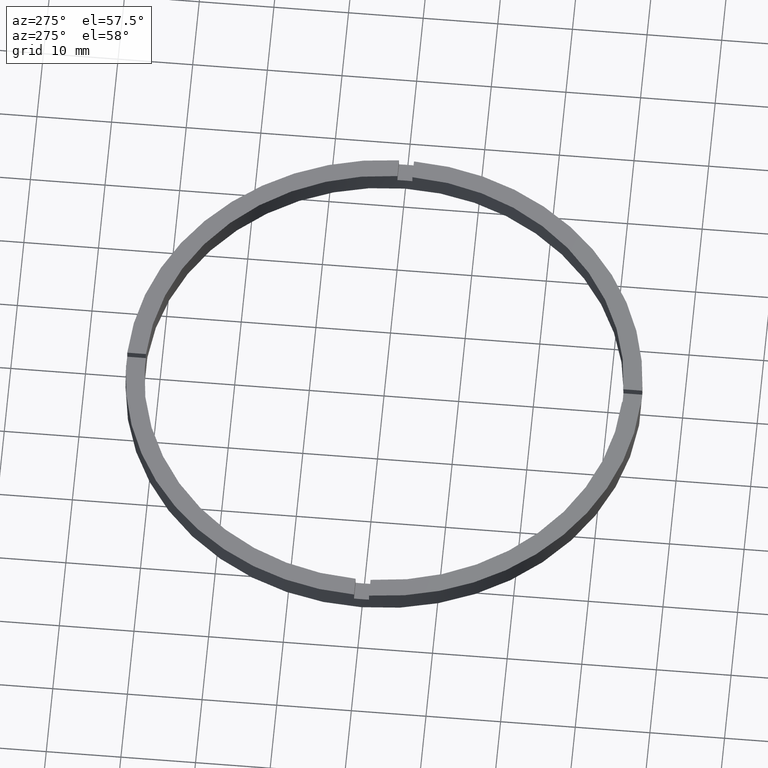
[diagram: clean part render]
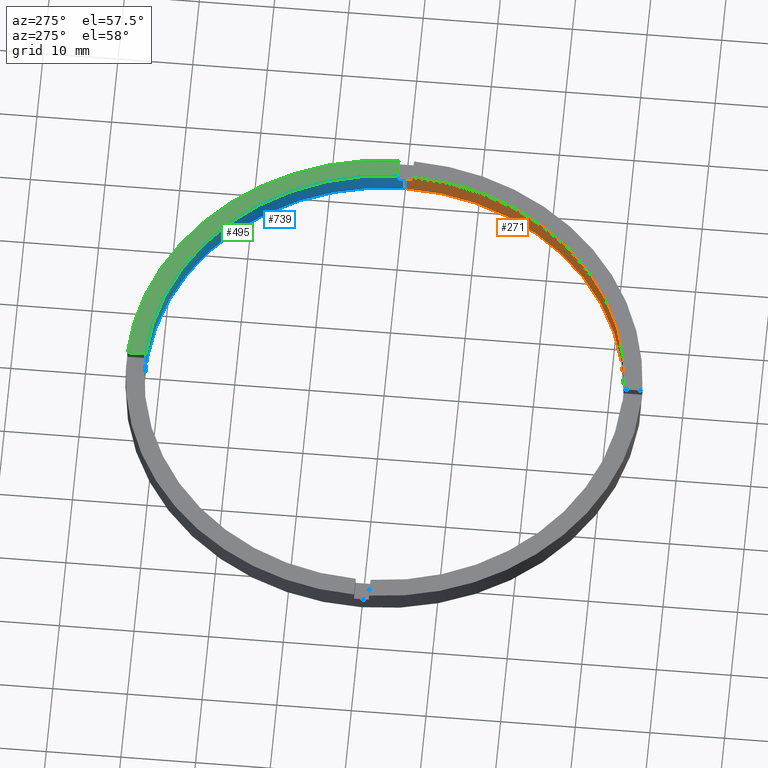
[diagram: same view with three faces highlighted in distinct colors, each labeled with its STEP entity id]
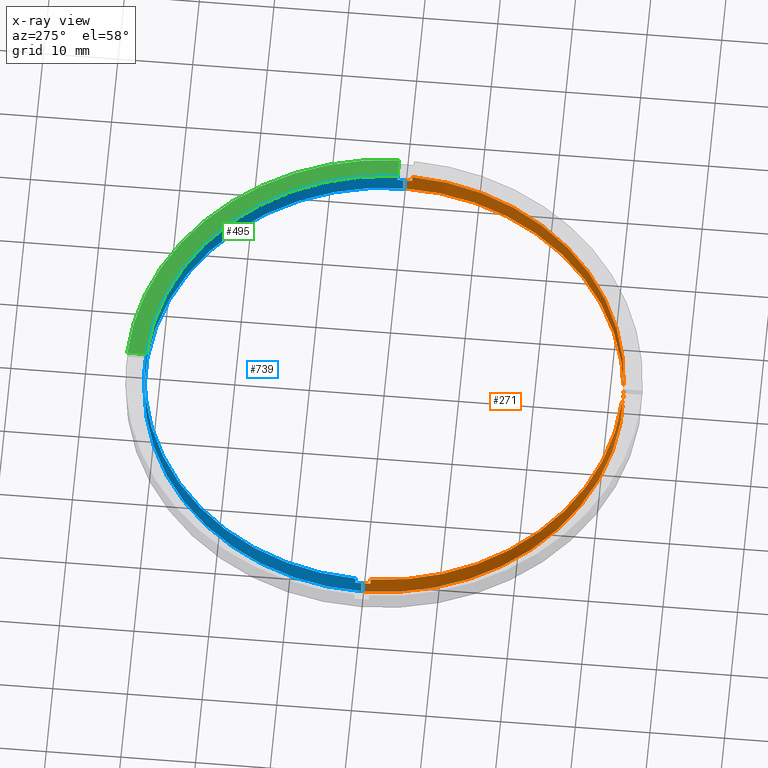
[diagram: x-ray of the same camera — body ghosted, the three highlighted faces saturated]
A machine part, auxiliary view with three faces highlighted in distinct colors.
The next image is the same camera in x-ray (body ghosted, the three faces saturated) — at least one of them is partly hidden behind the body in this view.
Their STEP definitions:

[orange] entity #271 — the highlighted cylindrical surface (partial cylindrical patch) has radius 32 mm, axis along (-0, -0, -1).
#14 = EDGE_CURVE ( 'NONE', #660, #645, #215, .T. ) ;
#25 = CARTESIAN_POINT ( 'NONE',  ( -31.98437118343894880, -1.000000000000026201, 3.000000000000000000 ) ) ;
#28 = LINE ( 'NONE', #308, #286 ) ;
#30 = LINE ( 'NONE', #536, #32 ) ;
#32 = VECTOR ( 'NONE', #158, 1000.000000000000000 ) ;
#33 = CARTESIAN_POINT ( 'NONE',  ( -1.000000000000161204, -31.98437118343894170, 3.000000000000000000 ) ) ;
#45 = CARTESIAN_POINT ( 'NONE',  ( 0.000000000000000000, 0.000000000000000000, 3.000000000000000000 ) ) ;
#47 = CARTESIAN_POINT ( 'NONE',  ( 0.000000000000000000, 0.000000000000000000, 3.000000000000000000 ) ) ;
#48 = EDGE_CURVE ( 'NONE', #84, #381, #486, .T. ) ;
#54 = CARTESIAN_POINT ( 'NONE',  ( 0.000000000000000000, 0.000000000000000000, 2.000000000000000000 ) ) ;
#61 = DIRECTION ( 'NONE',  ( 1.000000000000000000, 0.000000000000000000, 0.000000000000000000 ) ) ;
#65 = EDGE_CURVE ( 'NONE', #473, #645, #475, .T. ) ;
#66 = EDGE_LOOP ( 'NONE', ( #93, #123, #355, #220, #484, #574, #760, #635, #626, #238, #467, #142 ) ) ;
#72 = DIRECTION ( 'NONE',  ( -0.000000000000000000, -0.000000000000000000, -1.000000000000000000 ) ) ;
#74 = AXIS2_PLACEMENT_3D ( 'NONE', #555, #165, #239 ) ;
#84 = VERTEX_POINT ( 'NONE', #426 ) ;
#93 = ORIENTED_EDGE ( 'NONE', *, *, #715, .T. ) ;
#123 = ORIENTED_EDGE ( 'NONE', *, *, #553, .T. ) ;
#124 = VERTEX_POINT ( 'NONE', #573 ) ;
#133 = AXIS2_PLACEMENT_3D ( 'NONE', #631, #329, #373 ) ;
#134 = DIRECTION ( 'NONE',  ( 0.000000000000000000, 0.000000000000000000, 1.000000000000000000 ) ) ;
#142 = ORIENTED_EDGE ( 'NONE', *, *, #321, .F. ) ;
#146 = DIRECTION ( 'NONE',  ( -0.000000000000000000, -0.000000000000000000, -1.000000000000000000 ) ) ;
#147 = CIRCLE ( 'NONE', #74, 32.00000000000000000 ) ;
#158 = DIRECTION ( 'NONE',  ( 0.000000000000000000, 0.000000000000000000, 1.000000000000000000 ) ) ;
#165 = DIRECTION ( 'NONE',  ( 0.000000000000000000, 0.000000000000000000, 1.000000000000000000 ) ) ;
#180 = EDGE_CURVE ( 'NONE', #732, #752, #218, .T. ) ;
#181 = AXIS2_PLACEMENT_3D ( 'NONE', #646, #267, #637 ) ;
#215 = CIRCLE ( 'NONE', #181, 32.00000000000000000 ) ;
#217 = CARTESIAN_POINT ( 'NONE',  ( -31.98437118343894880, -1.000000000000026201, 2.000000000000000000 ) ) ;
#218 = CIRCLE ( 'NONE', #351, 32.00000000000000000 ) ;
#220 = ORIENTED_EDGE ( 'NONE', *, *, #569, .F. ) ;
#223 = DIRECTION ( 'NONE',  ( 0.000000000000000000, 0.000000000000000000, 1.000000000000000000 ) ) ;
#225 = VERTEX_POINT ( 'NONE', #217 ) ;
#229 = CARTESIAN_POINT ( 'NONE',  ( 0.9999999999998389066, -31.98437118343895591, 3.000000000000000000 ) ) ;
#238 = ORIENTED_EDGE ( 'NONE', *, *, #65, .F. ) ;
#239 = DIRECTION ( 'NONE',  ( 1.000000000000000000, 0.000000000000000000, 0.000000000000000000 ) ) ;
#240 = CYLINDRICAL_SURFACE ( 'NONE', #744, 32.00000000000000000 ) ;
#246 = CARTESIAN_POINT ( 'NONE',  ( 31.98437118343894170, -1.000000000000158096, 3.000000000000000000 ) ) ;
#256 = CIRCLE ( 'NONE', #726, 32.00000000000000000 ) ;
#267 = DIRECTION ( 'NONE',  ( -0.000000000000000000, 0.000000000000000000, 1.000000000000000000 ) ) ;
#269 = VECTOR ( 'NONE', #773, 1000.000000000000000 ) ;
#271 = ADVANCED_FACE ( 'NONE', ( #496 ), #240, .F. ) ;
#283 = LINE ( 'NONE', #566, #547 ) ;
#286 = VECTOR ( 'NONE', #146, 1000.000000000000000 ) ;
#290 = LINE ( 'NONE', #25, #551 ) ;
#303 = CARTESIAN_POINT ( 'NONE',  ( 0.9999999999998389066, -31.98437118343895591, 3.000000000000000000 ) ) ;
#308 = CARTESIAN_POINT ( 'NONE',  ( -32.00000000000000000, 0.000000000000000000, 3.000000000000000000 ) ) ;
#318 = EDGE_CURVE ( 'NONE', #722, #225, #256, .T. ) ;
#321 = EDGE_CURVE ( 'NONE', #124, #338, #511, .T. ) ;
#329 = DIRECTION ( 'NONE',  ( 0.000000000000000000, 0.000000000000000000, 1.000000000000000000 ) ) ;
#338 = VERTEX_POINT ( 'NONE', #246 ) ;
#351 = AXIS2_PLACEMENT_3D ( 'NONE', #47, #223, #527 ) ;
#355 = ORIENTED_EDGE ( 'NONE', *, *, #48, .F. ) ;
#373 = DIRECTION ( 'NONE',  ( 1.000000000000000000, 0.000000000000000000, 0.000000000000000000 ) ) ;
#379 = CARTESIAN_POINT ( 'NONE',  ( 0.9999999999998389066, -31.98437118343895591, 2.000000000000000000 ) ) ;
#381 = VERTEX_POINT ( 'NONE', #534 ) ;
#424 = VERTEX_POINT ( 'NONE', #494 ) ;
#426 = CARTESIAN_POINT ( 'NONE',  ( -32.00000000000000000, 0.000000000000000000, 0.000000000000000000 ) ) ;
#438 = DIRECTION ( 'NONE',  ( -0.000000000000000000, -0.000000000000000000, -1.000000000000000000 ) ) ;
#440 = AXIS2_PLACEMENT_3D ( 'NONE', #565, #640, #702 ) ;
#467 = ORIENTED_EDGE ( 'NONE', *, *, #468, .T. ) ;
#468 = EDGE_CURVE ( 'NONE', #473, #338, #517, .T. ) ;
#473 = VERTEX_POINT ( 'NONE', #229 ) ;
#475 = LINE ( 'NONE', #303, #489 ) ;
#484 = ORIENTED_EDGE ( 'NONE', *, *, #318, .T. ) ;
#486 = CIRCLE ( 'NONE', #133, 32.00000000000000000 ) ;
#489 = VECTOR ( 'NONE', #438, 1000.000000000000000 ) ;
#494 = CARTESIAN_POINT ( 'NONE',  ( 32.00000000000000000, 3.918869757271530263E-15, 2.000000000000000000 ) ) ;
#496 = FACE_OUTER_BOUND ( 'NONE', #66, .T. ) ;
#511 = LINE ( 'NONE', #723, #269 ) ;
#517 = CIRCLE ( 'NONE', #440, 32.00000000000000000 ) ;
#527 = DIRECTION ( 'NONE',  ( 1.000000000000000000, 0.000000000000000000, 0.000000000000000000 ) ) ;
#534 = CARTESIAN_POINT ( 'NONE',  ( 32.00000000000000000, 3.918869757271530263E-15, 0.000000000000000000 ) ) ;
#536 = CARTESIAN_POINT ( 'NONE',  ( -1.000000000000161204, -31.98437118343894170, 3.000000000000000000 ) ) ;
#546 = CARTESIAN_POINT ( 'NONE',  ( -32.00000000000000000, 0.000000000000000000, 2.000000000000000000 ) ) ;
#547 = VECTOR ( 'NONE', #72, 1000.000000000000000 ) ;
#551 = VECTOR ( 'NONE', #685, 1000.000000000000000 ) ;
#553 = EDGE_CURVE ( 'NONE', #424, #381, #283, .T. ) ;
#554 = EDGE_CURVE ( 'NONE', #660, #752, #30, .T. ) ;
#555 = CARTESIAN_POINT ( 'NONE',  ( 0.000000000000000000, 0.000000000000000000, 2.000000000000000000 ) ) ;
#565 = CARTESIAN_POINT ( 'NONE',  ( 0.000000000000000000, 0.000000000000000000, 3.000000000000000000 ) ) ;
#566 = CARTESIAN_POINT ( 'NONE',  ( 32.00000000000000000, 3.918869757271530263E-15, 3.000000000000000000 ) ) ;
#569 = EDGE_CURVE ( 'NONE', #722, #84, #28, .T. ) ;
#573 = CARTESIAN_POINT ( 'NONE',  ( 31.98437118343894170, -1.000000000000158096, 2.000000000000000000 ) ) ;
#574 = ORIENTED_EDGE ( 'NONE', *, *, #666, .F. ) ;
#626 = ORIENTED_EDGE ( 'NONE', *, *, #14, .T. ) ;
#631 = CARTESIAN_POINT ( 'NONE',  ( 0.000000000000000000, 0.000000000000000000, 0.000000000000000000 ) ) ;
#635 = ORIENTED_EDGE ( 'NONE', *, *, #554, .F. ) ;
#637 = DIRECTION ( 'NONE',  ( 1.000000000000000000, 0.000000000000000000, 0.000000000000000000 ) ) ;
#640 = DIRECTION ( 'NONE',  ( 0.000000000000000000, 0.000000000000000000, 1.000000000000000000 ) ) ;
#645 = VERTEX_POINT ( 'NONE', #379 ) ;
#646 = CARTESIAN_POINT ( 'NONE',  ( 0.000000000000000000, 0.000000000000000000, 2.000000000000000000 ) ) ;
#660 = VERTEX_POINT ( 'NONE', #672 ) ;
#661 = DIRECTION ( 'NONE',  ( -0.000000000000000000, -0.000000000000000000, -1.000000000000000000 ) ) ;
#666 = EDGE_CURVE ( 'NONE', #732, #225, #290, .T. ) ;
#672 = CARTESIAN_POINT ( 'NONE',  ( -1.000000000000161204, -31.98437118343894170, 2.000000000000000000 ) ) ;
#685 = DIRECTION ( 'NONE',  ( -0.000000000000000000, -0.000000000000000000, -1.000000000000000000 ) ) ;
#699 = CARTESIAN_POINT ( 'NONE',  ( -31.98437118343894880, -1.000000000000026201, 3.000000000000000000 ) ) ;
#702 = DIRECTION ( 'NONE',  ( 1.000000000000000000, 0.000000000000000000, 0.000000000000000000 ) ) ;
#715 = EDGE_CURVE ( 'NONE', #124, #424, #147, .T. ) ;
#722 = VERTEX_POINT ( 'NONE', #546 ) ;
#723 = CARTESIAN_POINT ( 'NONE',  ( 31.98437118343894170, -1.000000000000158096, 3.000000000000000000 ) ) ;
#726 = AXIS2_PLACEMENT_3D ( 'NONE', #54, #134, #61 ) ;
#732 = VERTEX_POINT ( 'NONE', #699 ) ;
#744 = AXIS2_PLACEMENT_3D ( 'NONE', #45, #661, #783 ) ;
#752 = VERTEX_POINT ( 'NONE', #33 ) ;
#760 = ORIENTED_EDGE ( 'NONE', *, *, #180, .T. ) ;
#773 = DIRECTION ( 'NONE',  ( 0.000000000000000000, 0.000000000000000000, 1.000000000000000000 ) ) ;
#783 = DIRECTION ( 'NONE',  ( -1.000000000000000000, 0.000000000000000000, 0.000000000000000000 ) ) ;

[blue] entity #739 — the highlighted cylindrical surface (partial cylindrical patch) has radius 32 mm, axis along (-0, -0, -1).
#3 = CARTESIAN_POINT ( 'NONE',  ( 0.9999999999999751310, 31.98437118343894880, 3.000000000000000000 ) ) ;
#4 = LINE ( 'NONE', #3, #23 ) ;
#16 = EDGE_CURVE ( 'NONE', #63, #632, #490, .T. ) ;
#23 = VECTOR ( 'NONE', #371, 1000.000000000000000 ) ;
#28 = LINE ( 'NONE', #308, #286 ) ;
#58 = CARTESIAN_POINT ( 'NONE',  ( 0.9999999999999751310, 31.98437118343894880, 3.000000000000000000 ) ) ;
#59 = EDGE_LOOP ( 'NONE', ( #615, #662, #576, #598, #592, #432, #411, #344, #357, #625, #636, #577 ) ) ;
#63 = VERTEX_POINT ( 'NONE', #243 ) ;
#72 = DIRECTION ( 'NONE',  ( -0.000000000000000000, -0.000000000000000000, -1.000000000000000000 ) ) ;
#84 = VERTEX_POINT ( 'NONE', #426 ) ;
#90 = VERTEX_POINT ( 'NONE', #278 ) ;
#94 = CARTESIAN_POINT ( 'NONE',  ( 0.000000000000000000, 0.000000000000000000, 3.000000000000000000 ) ) ;
#128 = CARTESIAN_POINT ( 'NONE',  ( 0.000000000000000000, 0.000000000000000000, 0.000000000000000000 ) ) ;
#129 = DIRECTION ( 'NONE',  ( 1.000000000000000000, 0.000000000000000000, 0.000000000000000000 ) ) ;
#137 = CIRCLE ( 'NONE', #758, 32.00000000000000000 ) ;
#140 = DIRECTION ( 'NONE',  ( 0.000000000000000000, -0.000000000000000000, 1.000000000000000000 ) ) ;
#146 = DIRECTION ( 'NONE',  ( -0.000000000000000000, -0.000000000000000000, -1.000000000000000000 ) ) ;
#169 = EDGE_CURVE ( 'NONE', #381, #84, #487, .T. ) ;
#170 = CARTESIAN_POINT ( 'NONE',  ( 0.000000000000000000, 0.000000000000000000, 3.000000000000000000 ) ) ;
#176 = DIRECTION ( 'NONE',  ( 1.000000000000000000, 0.000000000000000000, 0.000000000000000000 ) ) ;
#177 = CARTESIAN_POINT ( 'NONE',  ( 0.000000000000000000, 0.000000000000000000, 2.000000000000000000 ) ) ;
#196 = AXIS2_PLACEMENT_3D ( 'NONE', #704, #316, #599 ) ;
#197 = DIRECTION ( 'NONE',  ( 0.000000000000000000, 0.000000000000000000, 1.000000000000000000 ) ) ;
#241 = CARTESIAN_POINT ( 'NONE',  ( 0.000000000000000000, 0.000000000000000000, 2.000000000000000000 ) ) ;
#243 = CARTESIAN_POINT ( 'NONE',  ( 31.98437118343895591, 0.9999999999998419042, 3.000000000000000000 ) ) ;
#251 = CARTESIAN_POINT ( 'NONE',  ( -31.98437118343894880, 0.9999999999999737987, 3.000000000000000000 ) ) ;
#268 = DIRECTION ( 'NONE',  ( 0.000000000000000000, 0.000000000000000000, 1.000000000000000000 ) ) ;
#278 = CARTESIAN_POINT ( 'NONE',  ( -1.000000000000024869, 31.98437118343894880, 3.000000000000000000 ) ) ;
#283 = LINE ( 'NONE', #566, #547 ) ;
#286 = VECTOR ( 'NONE', #146, 1000.000000000000000 ) ;
#291 = EDGE_CURVE ( 'NONE', #747, #477, #761, .T. ) ;
#296 = AXIS2_PLACEMENT_3D ( 'NONE', #94, #508, #748 ) ;
#307 = EDGE_CURVE ( 'NONE', #605, #333, #531, .T. ) ;
#308 = CARTESIAN_POINT ( 'NONE',  ( -32.00000000000000000, 0.000000000000000000, 3.000000000000000000 ) ) ;
#316 = DIRECTION ( 'NONE',  ( 0.000000000000000000, 0.000000000000000000, 1.000000000000000000 ) ) ;
#333 = VERTEX_POINT ( 'NONE', #476 ) ;
#344 = ORIENTED_EDGE ( 'NONE', *, *, #762, .T. ) ;
#357 = ORIENTED_EDGE ( 'NONE', *, *, #307, .F. ) ;
#367 = DIRECTION ( 'NONE',  ( 1.000000000000000000, 0.000000000000000000, 0.000000000000000000 ) ) ;
#371 = DIRECTION ( 'NONE',  ( 0.000000000000000000, 0.000000000000000000, 1.000000000000000000 ) ) ;
#375 = EDGE_CURVE ( 'NONE', #605, #722, #535, .T. ) ;
#380 = VERTEX_POINT ( 'NONE', #434 ) ;
#381 = VERTEX_POINT ( 'NONE', #534 ) ;
#384 = CARTESIAN_POINT ( 'NONE',  ( 31.98437118343895591, 0.9999999999998419042, 3.000000000000000000 ) ) ;
#403 = DIRECTION ( 'NONE',  ( 1.000000000000000000, 0.000000000000000000, 0.000000000000000000 ) ) ;
#411 = ORIENTED_EDGE ( 'NONE', *, *, #714, .F. ) ;
#421 = CYLINDRICAL_SURFACE ( 'NONE', #296, 32.00000000000000000 ) ;
#424 = VERTEX_POINT ( 'NONE', #494 ) ;
#426 = CARTESIAN_POINT ( 'NONE',  ( -32.00000000000000000, 0.000000000000000000, 0.000000000000000000 ) ) ;
#432 = ORIENTED_EDGE ( 'NONE', *, *, #291, .T. ) ;
#434 = CARTESIAN_POINT ( 'NONE',  ( 31.98437118343895591, 0.9999999999998419042, 2.000000000000000000 ) ) ;
#443 = CARTESIAN_POINT ( 'NONE',  ( -31.98437118343894880, 0.9999999999999737987, 2.000000000000000000 ) ) ;
#446 = CARTESIAN_POINT ( 'NONE',  ( -1.000000000000024869, 31.98437118343894880, 3.000000000000000000 ) ) ;
#454 = AXIS2_PLACEMENT_3D ( 'NONE', #128, #586, #176 ) ;
#458 = DIRECTION ( 'NONE',  ( 1.000000000000000000, 0.000000000000000000, 0.000000000000000000 ) ) ;
#476 = CARTESIAN_POINT ( 'NONE',  ( -31.98437118343894880, 0.9999999999999737987, 3.000000000000000000 ) ) ;
#477 = VERTEX_POINT ( 'NONE', #754 ) ;
#481 = EDGE_CURVE ( 'NONE', #424, #380, #771, .T. ) ;
#487 = CIRCLE ( 'NONE', #454, 32.00000000000000000 ) ;
#490 = CIRCLE ( 'NONE', #196, 32.00000000000000000 ) ;
#492 = DIRECTION ( 'NONE',  ( -0.000000000000000000, -0.000000000000000000, -1.000000000000000000 ) ) ;
#494 = CARTESIAN_POINT ( 'NONE',  ( 32.00000000000000000, 3.918869757271530263E-15, 2.000000000000000000 ) ) ;
#508 = DIRECTION ( 'NONE',  ( -0.000000000000000000, -0.000000000000000000, -1.000000000000000000 ) ) ;
#514 = EDGE_CURVE ( 'NONE', #747, #632, #4, .T. ) ;
#518 = VECTOR ( 'NONE', #528, 1000.000000000000000 ) ;
#528 = DIRECTION ( 'NONE',  ( 0.000000000000000000, 0.000000000000000000, 1.000000000000000000 ) ) ;
#531 = LINE ( 'NONE', #251, #518 ) ;
#534 = CARTESIAN_POINT ( 'NONE',  ( 32.00000000000000000, 3.918869757271530263E-15, 0.000000000000000000 ) ) ;
#535 = CIRCLE ( 'NONE', #693, 32.00000000000000000 ) ;
#537 = LINE ( 'NONE', #384, #540 ) ;
#539 = CARTESIAN_POINT ( 'NONE',  ( 0.000000000000000000, 0.000000000000000000, 2.000000000000000000 ) ) ;
#540 = VECTOR ( 'NONE', #492, 1000.000000000000000 ) ;
#546 = CARTESIAN_POINT ( 'NONE',  ( -32.00000000000000000, 0.000000000000000000, 2.000000000000000000 ) ) ;
#547 = VECTOR ( 'NONE', #72, 1000.000000000000000 ) ;
#553 = EDGE_CURVE ( 'NONE', #424, #381, #283, .T. ) ;
#562 = CARTESIAN_POINT ( 'NONE',  ( 0.9999999999999751310, 31.98437118343894880, 2.000000000000000000 ) ) ;
#566 = CARTESIAN_POINT ( 'NONE',  ( 32.00000000000000000, 3.918869757271530263E-15, 3.000000000000000000 ) ) ;
#569 = EDGE_CURVE ( 'NONE', #722, #84, #28, .T. ) ;
#576 = ORIENTED_EDGE ( 'NONE', *, *, #676, .F. ) ;
#577 = ORIENTED_EDGE ( 'NONE', *, *, #169, .F. ) ;
#586 = DIRECTION ( 'NONE',  ( 0.000000000000000000, 0.000000000000000000, 1.000000000000000000 ) ) ;
#592 = ORIENTED_EDGE ( 'NONE', *, *, #514, .F. ) ;
#598 = ORIENTED_EDGE ( 'NONE', *, *, #16, .T. ) ;
#599 = DIRECTION ( 'NONE',  ( 1.000000000000000000, 0.000000000000000000, 0.000000000000000000 ) ) ;
#601 = AXIS2_PLACEMENT_3D ( 'NONE', #539, #140, #367 ) ;
#605 = VERTEX_POINT ( 'NONE', #443 ) ;
#615 = ORIENTED_EDGE ( 'NONE', *, *, #553, .F. ) ;
#625 = ORIENTED_EDGE ( 'NONE', *, *, #375, .T. ) ;
#632 = VERTEX_POINT ( 'NONE', #58 ) ;
#636 = ORIENTED_EDGE ( 'NONE', *, *, #569, .T. ) ;
#659 = VECTOR ( 'NONE', #718, 1000.000000000000000 ) ;
#662 = ORIENTED_EDGE ( 'NONE', *, *, #481, .T. ) ;
#671 = FACE_OUTER_BOUND ( 'NONE', #59, .T. ) ;
#674 = LINE ( 'NONE', #446, #659 ) ;
#676 = EDGE_CURVE ( 'NONE', #63, #380, #537, .T. ) ;
#693 = AXIS2_PLACEMENT_3D ( 'NONE', #241, #197, #129 ) ;
#704 = CARTESIAN_POINT ( 'NONE',  ( 0.000000000000000000, 0.000000000000000000, 3.000000000000000000 ) ) ;
#708 = AXIS2_PLACEMENT_3D ( 'NONE', #177, #778, #458 ) ;
#714 = EDGE_CURVE ( 'NONE', #90, #477, #674, .T. ) ;
#718 = DIRECTION ( 'NONE',  ( -0.000000000000000000, -0.000000000000000000, -1.000000000000000000 ) ) ;
#722 = VERTEX_POINT ( 'NONE', #546 ) ;
#739 = ADVANCED_FACE ( 'NONE', ( #671 ), #421, .F. ) ;
#747 = VERTEX_POINT ( 'NONE', #562 ) ;
#748 = DIRECTION ( 'NONE',  ( -1.000000000000000000, 0.000000000000000000, 0.000000000000000000 ) ) ;
#754 = CARTESIAN_POINT ( 'NONE',  ( -1.000000000000024869, 31.98437118343894880, 2.000000000000000000 ) ) ;
#758 = AXIS2_PLACEMENT_3D ( 'NONE', #170, #268, #403 ) ;
#761 = CIRCLE ( 'NONE', #601, 32.00000000000000000 ) ;
#762 = EDGE_CURVE ( 'NONE', #90, #333, #137, .T. ) ;
#771 = CIRCLE ( 'NONE', #708, 32.00000000000000000 ) ;
#778 = DIRECTION ( 'NONE',  ( 0.000000000000000000, 0.000000000000000000, 1.000000000000000000 ) ) ;

[green] entity #495 — the highlighted planar face has unit normal (0, 0, 1).
#16 = EDGE_CURVE ( 'NONE', #63, #632, #490, .T. ) ;
#35 = CIRCLE ( 'NONE', #525, 34.49999999999999289 ) ;
#58 = CARTESIAN_POINT ( 'NONE',  ( 0.9999999999999751310, 31.98437118343894880, 3.000000000000000000 ) ) ;
#63 = VERTEX_POINT ( 'NONE', #243 ) ;
#69 = VERTEX_POINT ( 'NONE', #479 ) ;
#73 = VERTEX_POINT ( 'NONE', #717 ) ;
#164 = VECTOR ( 'NONE', #716, 1000.000000000000000 ) ;
#179 = DIRECTION ( 'NONE',  ( 0.000000000000000000, 1.000000000000000000, 0.000000000000000000 ) ) ;
#184 = AXIS2_PLACEMENT_3D ( 'NONE', #470, #297, #575 ) ;
#193 = CARTESIAN_POINT ( 'NONE',  ( 0.000000000000000000, 0.000000000000000000, 3.000000000000000000 ) ) ;
#196 = AXIS2_PLACEMENT_3D ( 'NONE', #704, #316, #599 ) ;
#243 = CARTESIAN_POINT ( 'NONE',  ( 31.98437118343895591, 0.9999999999998419042, 3.000000000000000000 ) ) ;
#293 = LINE ( 'NONE', #325, #552 ) ;
#297 = DIRECTION ( 'NONE',  ( 0.000000000000000000, 0.000000000000000000, 1.000000000000000000 ) ) ;
#316 = DIRECTION ( 'NONE',  ( 0.000000000000000000, 0.000000000000000000, 1.000000000000000000 ) ) ;
#325 = CARTESIAN_POINT ( 'NONE',  ( 0.9999999999999751310, 24.49999999999999289, 3.000000000000000000 ) ) ;
#339 = ORIENTED_EDGE ( 'NONE', *, *, #657, .T. ) ;
#412 = LINE ( 'NONE', #480, #164 ) ;
#470 = CARTESIAN_POINT ( 'NONE',  ( 0.000000000000000000, 0.000000000000000000, 3.000000000000000000 ) ) ;
#479 = CARTESIAN_POINT ( 'NONE',  ( 0.9999999999999751310, 34.48550420104076153, 3.000000000000000000 ) ) ;
#480 = CARTESIAN_POINT ( 'NONE',  ( 24.49999999999998579, 0.9999999999998412381, 3.000000000000000000 ) ) ;
#490 = CIRCLE ( 'NONE', #196, 32.00000000000000000 ) ;
#495 = ADVANCED_FACE ( 'NONE', ( #521 ), #667, .T. ) ;
#521 = FACE_OUTER_BOUND ( 'NONE', #639, .T. ) ;
#525 = AXIS2_PLACEMENT_3D ( 'NONE', #193, #591, #618 ) ;
#544 = EDGE_CURVE ( 'NONE', #632, #69, #293, .T. ) ;
#552 = VECTOR ( 'NONE', #179, 1000.000000000000000 ) ;
#575 = DIRECTION ( 'NONE',  ( 1.000000000000000000, 0.000000000000000000, -0.000000000000000000 ) ) ;
#591 = DIRECTION ( 'NONE',  ( 0.000000000000000000, 0.000000000000000000, 1.000000000000000000 ) ) ;
#599 = DIRECTION ( 'NONE',  ( 1.000000000000000000, 0.000000000000000000, 0.000000000000000000 ) ) ;
#618 = DIRECTION ( 'NONE',  ( 1.000000000000000000, 0.000000000000000000, 0.000000000000000000 ) ) ;
#630 = ORIENTED_EDGE ( 'NONE', *, *, #544, .F. ) ;
#632 = VERTEX_POINT ( 'NONE', #58 ) ;
#639 = EDGE_LOOP ( 'NONE', ( #630, #753, #644, #339 ) ) ;
#644 = ORIENTED_EDGE ( 'NONE', *, *, #719, .F. ) ;
#657 = EDGE_CURVE ( 'NONE', #73, #69, #35, .T. ) ;
#667 = PLANE ( 'NONE',  #184 ) ;
#704 = CARTESIAN_POINT ( 'NONE',  ( 0.000000000000000000, 0.000000000000000000, 3.000000000000000000 ) ) ;
#716 = DIRECTION ( 'NONE',  ( -1.000000000000000000, -6.505213034913025371E-17, -0.000000000000000000 ) ) ;
#717 = CARTESIAN_POINT ( 'NONE',  ( 34.48550420104076153, 0.9999999999998419042, 3.000000000000000000 ) ) ;
#719 = EDGE_CURVE ( 'NONE', #73, #63, #412, .T. ) ;
#753 = ORIENTED_EDGE ( 'NONE', *, *, #16, .F. ) ;